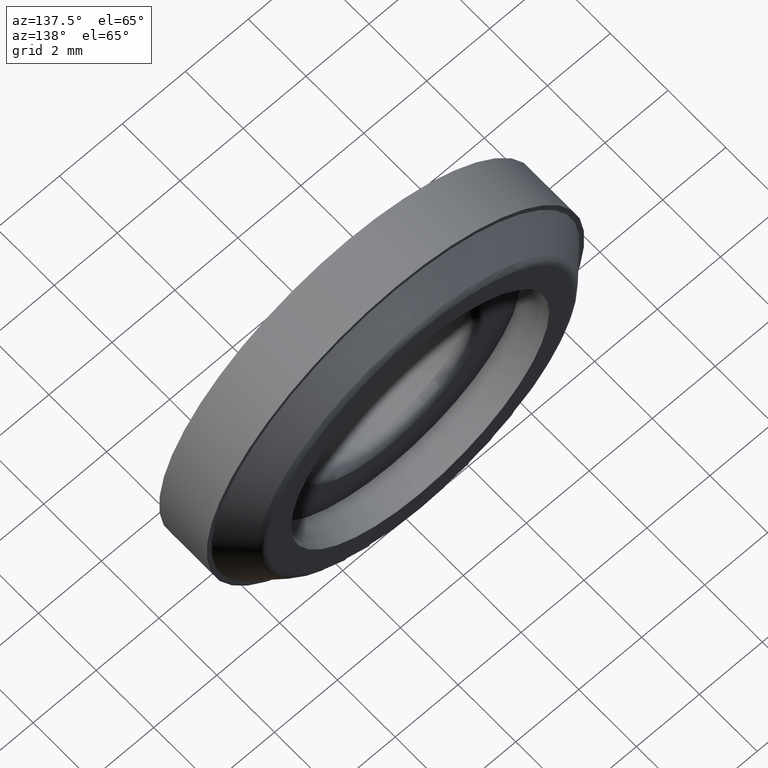
[diagram: clean part render]
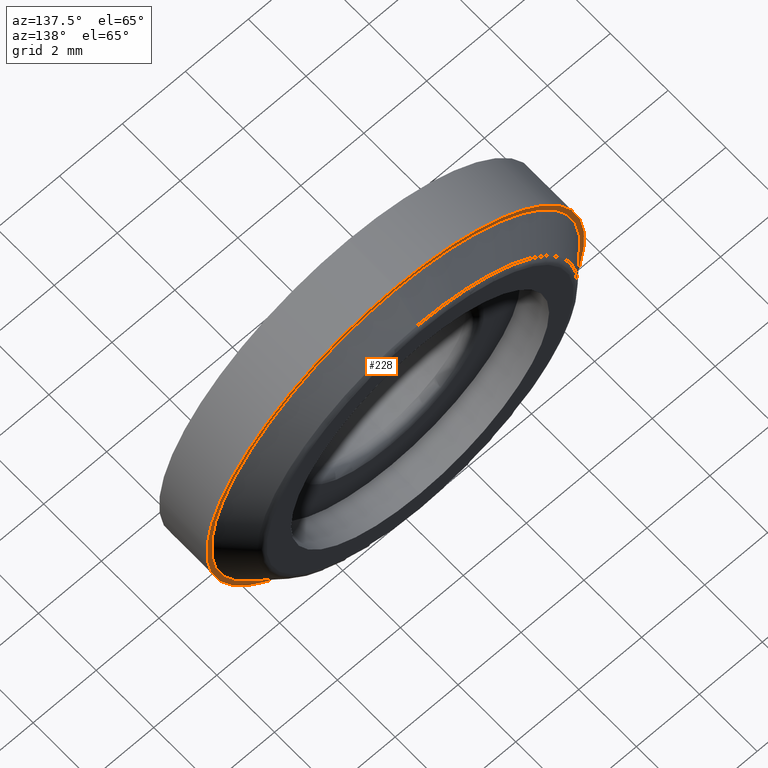
[diagram: same view with one face highlighted and labeled with its STEP entity id]
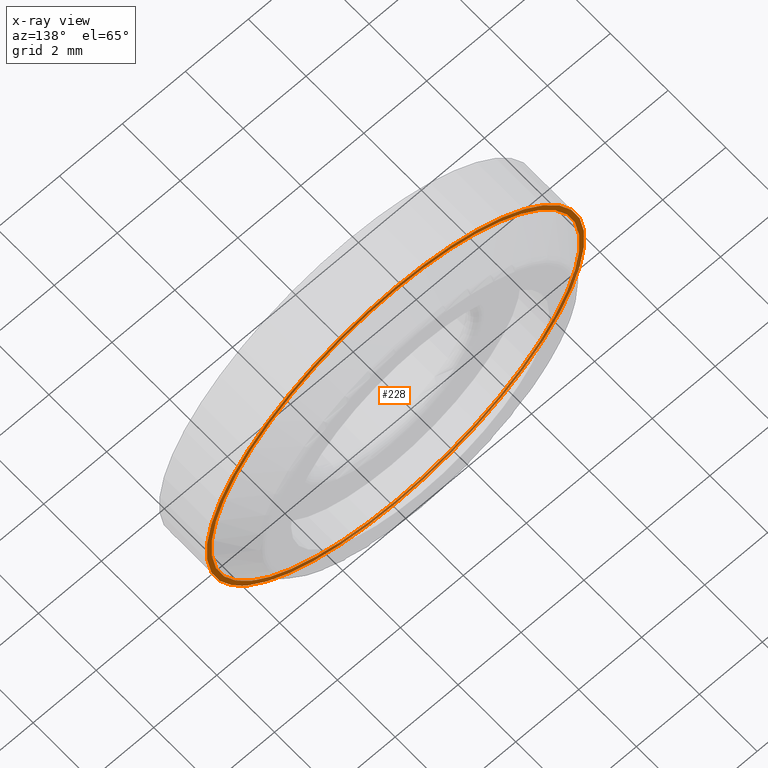
[diagram: x-ray of the same camera — body ghosted, the highlighted face saturated]
A machine part, auxiliary view. The second image highlights one B-rep face of the part: STEP entity #228.
The next image is the same camera in x-ray: the body ghosted, the highlighted face saturated — about 34% of this face is hidden behind the body in this view.
In plain terms, the highlighted planar face has unit normal (0, -1, 0).
Its self-contained STEP definition (entity closure, byte-faithful):
#3 = PLANE ( 'NONE',  #268 ) ;
#15 = CIRCLE ( 'NONE', #37, 6.000000000000001800 ) ;
#17 = VERTEX_POINT ( 'NONE', #145 ) ;
#37 = AXIS2_PLACEMENT_3D ( 'NONE', #305, #509, #51 ) ;
#45 = DIRECTION ( 'NONE',  ( -0.0000000000000000000, 1.000000000000000000, -0.0000000000000000000 ) ) ;
#51 = DIRECTION ( 'NONE',  ( 0.0000000000000000000, 0.0000000000000000000, 1.000000000000000000 ) ) ;
#54 = EDGE_CURVE ( 'NONE', #17, #493, #453, .T. ) ;
#56 = VERTEX_POINT ( 'NONE', #310 ) ;
#61 = ORIENTED_EDGE ( 'NONE', *, *, #67, .F. ) ;
#67 = EDGE_CURVE ( 'NONE', #56, #290, #238, .T. ) ;
#70 = CARTESIAN_POINT ( 'NONE',  ( 0.0000000000000000000, 1.649999999999999900, 0.0000000000000000000 ) ) ;
#90 = FACE_OUTER_BOUND ( 'NONE', #289, .T. ) ;
#109 = CARTESIAN_POINT ( 'NONE',  ( 7.164183775012018400E-016, 1.649999999999999900, 5.850000000000002300 ) ) ;
#114 = DIRECTION ( 'NONE',  ( -0.0000000000000000000, 1.000000000000000000, -0.0000000000000000000 ) ) ;
#118 = FACE_BOUND ( 'NONE', #345, .T. ) ;
#128 = CARTESIAN_POINT ( 'NONE',  ( 0.0000000000000000000, 1.649999999999999900, 5.850000000000002300 ) ) ;
#135 = ORIENTED_EDGE ( 'NONE', *, *, #418, .T. ) ;
#145 = CARTESIAN_POINT ( 'NONE',  ( 0.0000000000000000000, 1.649999999999999900, -6.000000000000002700 ) ) ;
#168 = DIRECTION ( 'NONE',  ( 0.0000000000000000000, -1.000000000000000000, 0.0000000000000000000 ) ) ;
#194 = DIRECTION ( 'NONE',  ( -0.0000000000000000000, 1.000000000000000000, -0.0000000000000000000 ) ) ;
#195 = ORIENTED_EDGE ( 'NONE', *, *, #264, .F. ) ;
#228 = ADVANCED_FACE ( 'NONE', ( #118, #90 ), #3, .F. ) ;
#238 = CIRCLE ( 'NONE', #256, 5.850000000000002300 ) ;
#256 = AXIS2_PLACEMENT_3D ( 'NONE', #272, #194, #471 ) ;
#259 = CIRCLE ( 'NONE', #353, 5.850000000000002300 ) ;
#264 = EDGE_CURVE ( 'NONE', #290, #56, #259, .T. ) ;
#268 = AXIS2_PLACEMENT_3D ( 'NONE', #128, #168, #451 ) ;
#272 = CARTESIAN_POINT ( 'NONE',  ( 0.0000000000000000000, 1.649999999999999900, 0.0000000000000000000 ) ) ;
#289 = EDGE_LOOP ( 'NONE', ( #307, #135 ) ) ;
#290 = VERTEX_POINT ( 'NONE', #109 ) ;
#292 = CARTESIAN_POINT ( 'NONE',  ( 0.0000000000000000000, 1.649999999999999900, 0.0000000000000000000 ) ) ;
#305 = CARTESIAN_POINT ( 'NONE',  ( 0.0000000000000000000, 1.649999999999999900, 0.0000000000000000000 ) ) ;
#307 = ORIENTED_EDGE ( 'NONE', *, *, #54, .T. ) ;
#310 = CARTESIAN_POINT ( 'NONE',  ( 0.0000000000000000000, 1.649999999999999900, -5.850000000000002300 ) ) ;
#342 = DIRECTION ( 'NONE',  ( 0.0000000000000000000, 0.0000000000000000000, 1.000000000000000000 ) ) ;
#345 = EDGE_LOOP ( 'NONE', ( #61, #195 ) ) ;
#353 = AXIS2_PLACEMENT_3D ( 'NONE', #292, #45, #342 ) ;
#366 = DIRECTION ( 'NONE',  ( 0.0000000000000000000, 0.0000000000000000000, 1.000000000000000000 ) ) ;
#368 = AXIS2_PLACEMENT_3D ( 'NONE', #70, #114, #366 ) ;
#402 = CARTESIAN_POINT ( 'NONE',  ( 7.347880794884122700E-016, 1.649999999999999900, 6.000000000000002700 ) ) ;
#418 = EDGE_CURVE ( 'NONE', #493, #17, #15, .T. ) ;
#451 = DIRECTION ( 'NONE',  ( 0.0000000000000000000, -0.0000000000000000000, -1.000000000000000000 ) ) ;
#453 = CIRCLE ( 'NONE', #368, 6.000000000000001800 ) ;
#471 = DIRECTION ( 'NONE',  ( 0.0000000000000000000, 0.0000000000000000000, 1.000000000000000000 ) ) ;
#493 = VERTEX_POINT ( 'NONE', #402 ) ;
#509 = DIRECTION ( 'NONE',  ( -0.0000000000000000000, 1.000000000000000000, -0.0000000000000000000 ) ) ;